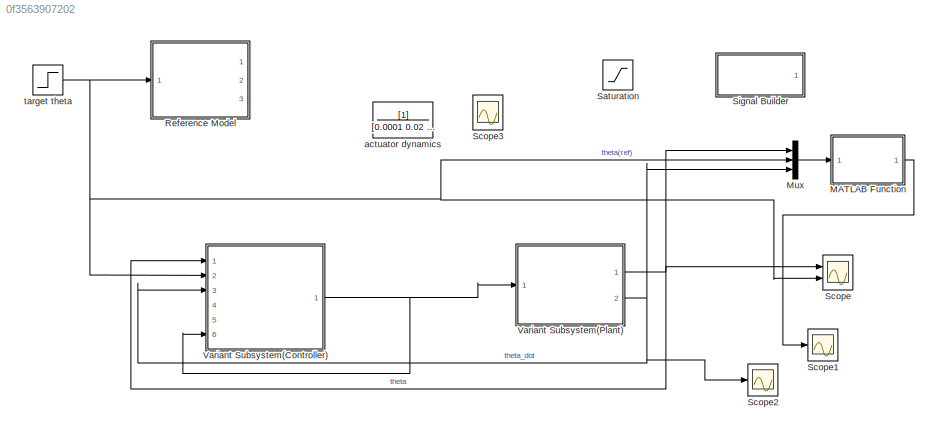
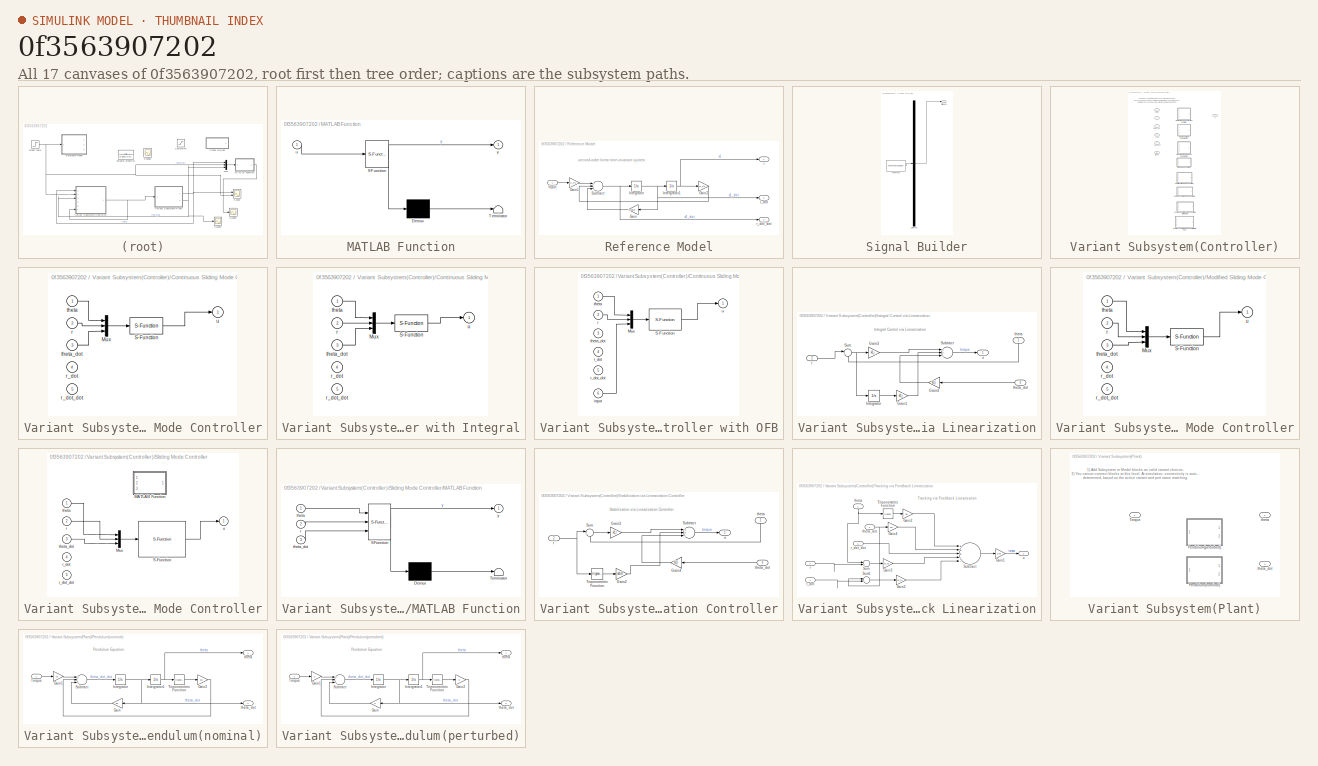
[diagram: thumbnail index - all 17 canvases of the model, root first then tree order]
MODEL slx_0f3563907202
KIND model
CONFIG AbsTol = auto
CONFIG EnableMultiTasking = off
CONFIG FixedStep = 0.01
CONFIG MaxStep = auto
CONFIG MinStep = auto
CONFIG PreLoadFcn = Nominal_Plant = Simulink.Variant('Mode_Plant == 1')\nPerturbed_Plant = Simulink.Variant('Mode_Plant == 2')\nMode_Plant = 1\nLinearization_Controller = Simulink.Variant('Mode_Controller == 1')\nIntegral_Controller = Simulink.Variant('Mode_Controller == 2')\nFeedback_Linearization_Controller = Simulink.Variant('Mode_Controller == 3')\nSliding_Mode_Controller = Simulink.Variant('Mode_Controller == 4')\nModi...<+338ch>
CONFIG RelTol = 1e-3
CONFIG SampleTimeConstraint = Unconstrained
CONFIG Solver = ode45
CONFIG SolverName = ode45
CONFIG StartTime = 0.0
CONFIG StopTime = 10.0
BLOCK [SubSystem] MATLAB Function
  ErrorFcn = Stateflow.Translate.translate
  PermitHierarchicalResolution = ExplicitOnly
  Ports = [1, 1]
  RequestExecContextInheritance = off
  SFBlockType = MATLAB Function
  TreatAsAtomicUnit = on
  Variant = off
BLOCK [Demux] MATLAB Function/ Demux 
  Outputs = 1
  Ports = [1, 1]
BLOCK [S-Function] MATLAB Function/ SFunction 
  EnableBusSupport = on
  FunctionName = sf_sfun
  PortCounts = [1 2]
  Ports = [1, 2]
  SFcnIsStateOwnerBlock = off
  SFunctionDeploymentMode = off
  Tag = Stateflow S-Function pendulum 2
BLOCK [Terminator] MATLAB Function/ Terminator 
BLOCK [Inport] MATLAB Function/u
  IconDisplay = Port number
BLOCK [Outport] MATLAB Function/y
  IconDisplay = Port number
BLOCK [Mux] Mux
  DisplayOption = bar
  Inputs = 3
  Ports = [3, 1]
BLOCK [SubSystem] Reference Model
  Ports = [1, 3]
  RequestExecContextInheritance = off
  Variant = off
  VariantControl = Nominal_Plant
BLOCK [Gain] Reference Model/Gain
  Gain = 2*zeta*w_n
  OutDataTypeStr = Inherit: Inherit via internal rule
  ParamDataTypeStr = Inherit: Inherit via internal rule
  SaturateOnIntegerOverflow = off
BLOCK [Gain] Reference Model/Gain1
  Gain = w_n^2
  OutDataTypeStr = Inherit: Inherit via internal rule
  ParamDataTypeStr = Inherit: Inherit via internal rule
  SaturateOnIntegerOverflow = off
BLOCK [Gain] Reference Model/Gain2
  Gain = w_n^2
  OutDataTypeStr = Inherit: Inherit via internal rule
  ParamDataTypeStr = Inherit: Inherit via internal rule
  SaturateOnIntegerOverflow = off
BLOCK [Inport] Reference Model/Input
  IconDisplay = Port number
BLOCK [Integrator] Reference Model/Integrator
  Ports = [1, 1]
BLOCK [Integrator] Reference Model/Intergrator1
  Ports = [1, 1]
BLOCK [Sum] Reference Model/Subtract
  InputSameDT = off
  Inputs = +--
  OutDataTypeStr = Inherit: Inherit via internal rule
  Ports = [3, 1]
  SaturateOnIntegerOverflow = off
BLOCK [Outport] Reference Model/r
  IconDisplay = Port number
BLOCK [Outport] Reference Model/r_dot
  IconDisplay = Port number
  Port = 2
BLOCK [Outport] Reference Model/r_dot_dot
  IconDisplay = Port number
  Port = 3
BLOCK [Saturate] Saturation
  InputPortMap = u0
  LowerLimit = -limit
  Ports = [1, 1]
  UpperLimit = limit
BLOCK [Scope] Scope
  NumInputPorts = 2
  Ports = [2]
  ScopeSpecificationString = Simulink.scopes.TimeScopeBlockCfg('CurrentConfiguration', extmgr.ConfigurationSet(extmgr.Configuration('Core','General UI',true),extmgr.Configuration('Core','Source UI',true),extmgr.Configuration('Sources','WiredSimulink',true),extmgr.Configuration('Visuals','Time Domain',true,'SerializedDisplays',{struct('MinYLimReal','-0.3927','MaxYLimReal','3.53429','YLabelReal','','MinYLimMag','0.00000','MaxYL...<+1431ch>
BLOCK [Scope] Scope1
  NumInputPorts = 1
  Ports = [1]
  ScopeSpecificationString = Simulink.scopes.TimeScopeBlockCfg('CurrentConfiguration', extmgr.ConfigurationSet(extmgr.Configuration('Core','General UI',true),extmgr.Configuration('Core','Source UI',true),extmgr.Configuration('Sources','WiredSimulink',true,'DataLoggingVariableName','ScopeData1'),extmgr.Configuration('Visuals','Time Domain',true,'SerializedDisplays',{struct('MinYLimReal','-1.76862','MaxYLimReal','0.20966','YLab...<+1446ch>
BLOCK [Scope] Scope2
  NumInputPorts = 1
  Ports = [1]
  ScopeSpecificationString = Simulink.scopes.TimeScopeBlockCfg('CurrentConfiguration', extmgr.ConfigurationSet(extmgr.Configuration('Core','General UI',true),extmgr.Configuration('Core','Source UI',true),extmgr.Configuration('Sources','WiredSimulink',true,'DataLoggingVariableName','ScopeData1'),extmgr.Configuration('Visuals','Time Domain',true,'SerializedDisplays',{struct('MinYLimReal','-5.00000','MaxYLimReal','5.00000','YLab...<+1440ch>
BLOCK [Scope] Scope3
  NumInputPorts = 2
  Ports = [2]
  ScopeSpecificationString = Simulink.scopes.TimeScopeBlockCfg('CurrentConfiguration', extmgr.ConfigurationSet(extmgr.Configuration('Core','General UI',true),extmgr.Configuration('Core','Source UI',true),extmgr.Configuration('Sources','WiredSimulink',true,'DataLoggingVariableName','ScopeData2'),extmgr.Configuration('Visuals','Time Domain',true,'SerializedDisplays',{struct('MinYLimReal','-0.19635','MaxYLimReal','1.76715','YLab...<+1449ch>
BLOCK [SubSystem] Signal Builder
  ClipboardFcn = sigbuilder_block('clipboard');
  CloseFcn = sigbuilder_block('close');
  ContinueFcn = sigbuilder_block('continue');
  CopyFcn = sigbuilder_block('copy');
  DeleteFcn = sigbuilder_block('delete');
  LoadFcn = sigbuilder_block('load');
  MaskHideContents = on
  ModelCloseFcn = sigbuilder_block('modelClose');
  NameChangeFcn = sigbuilder_block('namechange');
  OpenFcn = sigbuilder_block('open',[6 30 1012.5 446.25 ]);
  PauseFcn = sigbuilder_block('pause');
  Ports = [0, 1]
  PreSaveFcn = sigbuilder_block('preSave');
  RequestExecContextInheritance = off
  StartFcn = sigbuilder_block('start');
  StopFcn = sigbuilder_block('stop');
  Tag = STV Subsys
  Variant = off
BLOCK [Demux] Signal Builder/Demux
  Outputs = 1
  Ports = [1, 1]
  Tag = STV Demux
BLOCK [FromWorkspace] Signal Builder/FromWs
  SampleTime = 0
  Tag = STV FromWs
  VariableName = tuvar
  ZeroCross = on
BLOCK [Outport] Signal Builder/Signal 1
  IconDisplay = Port number
  Tag = STV Outport
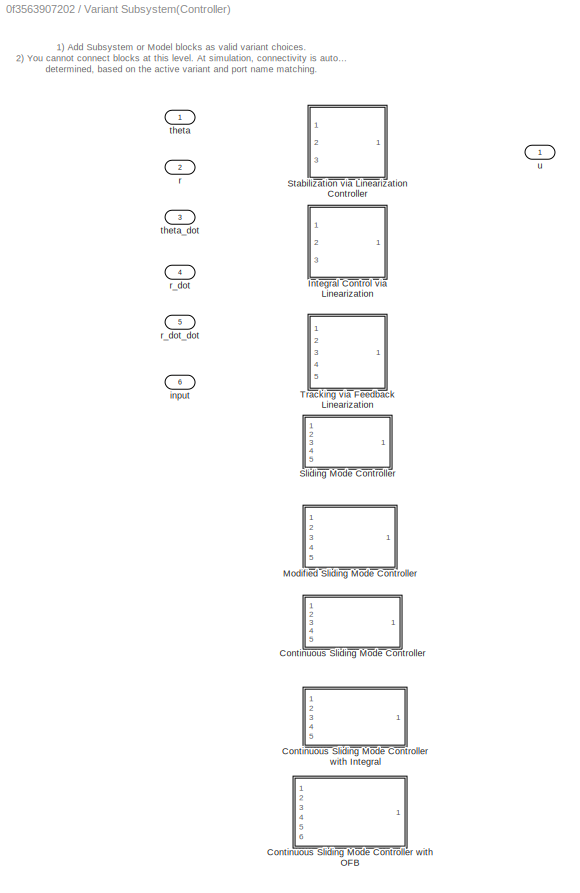
BLOCK [SubSystem] Variant Subsystem(Controller)
  Ports = [6, 1]
  RequestExecContextInheritance = off
  Variant = on
BLOCK [SubSystem] Variant Subsystem(Controller)/Continuous Sliding Mode Controller
  Ports = [5, 1]
  RequestExecContextInheritance = off
  Variant = off
  VariantControl = Continuous_Sliding_Mode_Controller
BLOCK [SubSystem] Variant Subsystem(Controller)/Continuous Sliding Mode Controller with Integral
  Ports = [5, 1]
  RequestExecContextInheritance = off
  Variant = off
  VariantControl = Integral_Continuous_Sliding_Mode_Controller
BLOCK [Mux] Variant Subsystem(Controller)/Continuous Sliding Mode Controller with Integral/Mux
  DisplayOption = bar
  Inputs = 3
  Ports = [3, 1]
BLOCK [S-Function] Variant Subsystem(Controller)/Continuous Sliding Mode Controller with Integral/S-Function
  EnableBusSupport = off
  FunctionName = SMC_continuous_integral
  Ports = [1, 1]
  SFcnIsStateOwnerBlock = off
  SFunctionDeploymentMode = off
BLOCK [Inport] Variant Subsystem(Controller)/Continuous Sliding Mode Controller with Integral/r
  IconDisplay = Port number
  Port = 2
BLOCK [Inport] Variant Subsystem(Controller)/Continuous Sliding Mode Controller with Integral/r_dot
  IconDisplay = Port number
  Port = 4
BLOCK [Inport] Variant Subsystem(Controller)/Continuous Sliding Mode Controller with Integral/r_dot_dot
  IconDisplay = Port number
  Port = 5
BLOCK [Inport] Variant Subsystem(Controller)/Continuous Sliding Mode Controller with Integral/theta
  IconDisplay = Port number
BLOCK [Inport] Variant Subsystem(Controller)/Continuous Sliding Mode Controller with Integral/theta_dot
  IconDisplay = Port number
  Port = 3
BLOCK [Outport] Variant Subsystem(Controller)/Continuous Sliding Mode Controller with Integral/u
  IconDisplay = Port number
BLOCK [SubSystem] Variant Subsystem(Controller)/Continuous Sliding Mode Controller with OFB
  Ports = [6, 1]
  RequestExecContextInheritance = off
  Variant = off
  VariantControl = Continuous_Sliding_Mode_Controller_OFB
BLOCK [Mux] Variant Subsystem(Controller)/Continuous Sliding Mode Controller with OFB/Mux
  DisplayOption = bar
  Inputs = 3
  Ports = [3, 1]
BLOCK [S-Function] Variant Subsystem(Controller)/Continuous Sliding Mode Controller with OFB/S-Function
  EnableBusSupport = off
  FunctionName = SMC_continuous_OFB
  Ports = [1, 1]
  SFcnIsStateOwnerBlock = off
  SFunctionDeploymentMode = off
BLOCK [Inport] Variant Subsystem(Controller)/Continuous Sliding Mode Controller with OFB/input
  IconDisplay = Port number
  Port = 6
BLOCK [Inport] Variant Subsystem(Controller)/Continuous Sliding Mode Controller with OFB/r
  IconDisplay = Port number
  Port = 2
BLOCK [Inport] Variant Subsystem(Controller)/Continuous Sliding Mode Controller with OFB/r_dot
  IconDisplay = Port number
  Port = 4
BLOCK [Inport] Variant Subsystem(Controller)/Continuous Sliding Mode Controller with OFB/r_dot_dot
  IconDisplay = Port number
  Port = 5
BLOCK [Inport] Variant Subsystem(Controller)/Continuous Sliding Mode Controller with OFB/theta
  IconDisplay = Port number
BLOCK [Inport] Variant Subsystem(Controller)/Continuous Sliding Mode Controller with OFB/theta_dot
  IconDisplay = Port number
  Port = 3
BLOCK [Outport] Variant Subsystem(Controller)/Continuous Sliding Mode Controller with OFB/u
  IconDisplay = Port number
BLOCK [Mux] Variant Subsystem(Controller)/Continuous Sliding Mode Controller/Mux
  DisplayOption = bar
  Inputs = 3
  Ports = [3, 1]
BLOCK [S-Function] Variant Subsystem(Controller)/Continuous Sliding Mode Controller/S-Function
  EnableBusSupport = off
  FunctionName = SMC_continuous
  Ports = [1, 1]
  SFcnIsStateOwnerBlock = off
  SFunctionDeploymentMode = off
BLOCK [Inport] Variant Subsystem(Controller)/Continuous Sliding Mode Controller/r
  IconDisplay = Port number
  Port = 2
BLOCK [Inport] Variant Subsystem(Controller)/Continuous Sliding Mode Controller/r_dot
  IconDisplay = Port number
  Port = 4
BLOCK [Inport] Variant Subsystem(Controller)/Continuous Sliding Mode Controller/r_dot_dot
  IconDisplay = Port number
  Port = 5
BLOCK [Inport] Variant Subsystem(Controller)/Continuous Sliding Mode Controller/theta
  IconDisplay = Port number
BLOCK [Inport] Variant Subsystem(Controller)/Continuous Sliding Mode Controller/theta_dot
  IconDisplay = Port number
  Port = 3
BLOCK [Outport] Variant Subsystem(Controller)/Continuous Sliding Mode Controller/u
  IconDisplay = Port number
BLOCK [SubSystem] Variant Subsystem(Controller)/Integral Control via Linearization
  Ports = [3, 1]
  RequestExecContextInheritance = off
  Variant = off
  VariantControl = Integral_Controller
BLOCK [Gain] Variant Subsystem(Controller)/Integral Control via Linearization/Gain1
  Gain = k3_i
  OutDataTypeStr = Inherit: Inherit via internal rule
  ParamDataTypeStr = Inherit: Inherit via internal rule
  SaturateOnIntegerOverflow = off
BLOCK [Gain] Variant Subsystem(Controller)/Integral Control via Linearization/Gain3
  Gain = k1_i
  OutDataTypeStr = Inherit: Inherit via internal rule
  ParamDataTypeStr = Inherit: Inherit via internal rule
  SaturateOnIntegerOverflow = off
BLOCK [Gain] Variant Subsystem(Controller)/Integral Control via Linearization/Gain4
  Gain = k2_i
  OutDataTypeStr = Inherit: Inherit via internal rule
  ParamDataTypeStr = Inherit: Inherit via internal rule
  SaturateOnIntegerOverflow = off
BLOCK [Integrator] Variant Subsystem(Controller)/Integral Control via Linearization/Integrator
  Ports = [1, 1]
BLOCK [Sum] Variant Subsystem(Controller)/Integral Control via Linearization/Subtract
  InputSameDT = off
  Inputs = ++-
  OutDataTypeStr = Inherit: Inherit via internal rule
  Ports = [3, 1]
  SaturateOnIntegerOverflow = off
BLOCK [Sum] Variant Subsystem(Controller)/Integral Control via Linearization/Sum
  IconShape = round
  InputSameDT = off
  Inputs = |+-
  OutDataTypeStr = Inherit: Inherit via internal rule
  Ports = [2, 1]
  SaturateOnIntegerOverflow = off
BLOCK [Inport] Variant Subsystem(Controller)/Integral Control via Linearization/r
  IconDisplay = Port number
  Port = 2
BLOCK [Inport] Variant Subsystem(Controller)/Integral Control via Linearization/theta
  IconDisplay = Port number
BLOCK [Inport] Variant Subsystem(Controller)/Integral Control via Linearization/theta_dot
  IconDisplay = Port number
  Port = 3
BLOCK [Outport] Variant Subsystem(Controller)/Integral Control via Linearization/u
  IconDisplay = Port number
BLOCK [SubSystem] Variant Subsystem(Controller)/Modified Sliding Mode Controller
  Ports = [5, 1]
  RequestExecContextInheritance = off
  Variant = off
  VariantControl = Modified_Sliding_Mode_Controller
BLOCK [Mux] Variant Subsystem(Controller)/Modified Sliding Mode Controller/Mux
  DisplayOption = bar
  Inputs = 3
  Ports = [3, 1]
BLOCK [S-Function] Variant Subsystem(Controller)/Modified Sliding Mode Controller/S-Function
  EnableBusSupport = off
  FunctionName = SMC_modified
  Ports = [1, 1]
  SFcnIsStateOwnerBlock = off
  SFunctionDeploymentMode = off
BLOCK [Inport] Variant Subsystem(Controller)/Modified Sliding Mode Controller/r
  IconDisplay = Port number
  Port = 2
BLOCK [Inport] Variant Subsystem(Controller)/Modified Sliding Mode Controller/r_dot
  IconDisplay = Port number
  Port = 4
BLOCK [Inport] Variant Subsystem(Controller)/Modified Sliding Mode Controller/r_dot_dot
  IconDisplay = Port number
  Port = 5
BLOCK [Inport] Variant Subsystem(Controller)/Modified Sliding Mode Controller/theta
  IconDisplay = Port number
BLOCK [Inport] Variant Subsystem(Controller)/Modified Sliding Mode Controller/theta_dot
  IconDisplay = Port number
  Port = 3
BLOCK [Outport] Variant Subsystem(Controller)/Modified Sliding Mode Controller/u
  IconDisplay = Port number
BLOCK [SubSystem] Variant Subsystem(Controller)/Sliding Mode Controller
  Ports = [5, 1]
  RequestExecContextInheritance = off
  Variant = off
  VariantControl = Sliding_Mode_Controller
BLOCK [SubSystem] Variant Subsystem(Controller)/Sliding Mode Controller/MATLAB Function
  Commented = on
  ErrorFcn = Stateflow.Translate.translate
  PermitHierarchicalResolution = ExplicitOnly
  Ports = [3, 1]
  RequestExecContextInheritance = off
  SFBlockType = MATLAB Function
  TreatAsAtomicUnit = on
  Variant = off
BLOCK [Demux] Variant Subsystem(Controller)/Sliding Mode Controller/MATLAB Function/ Demux 
  Outputs = 1
  Ports = [1, 1]
BLOCK [S-Function] Variant Subsystem(Controller)/Sliding Mode Controller/MATLAB Function/ SFunction 
  EnableBusSupport = on
  FunctionName = sf_sfun
  PortCounts = [3 2]
  Ports = [3, 2]
  SFcnIsStateOwnerBlock = off
  SFunctionDeploymentMode = off
  Tag = Stateflow S-Function pendulum 1
BLOCK [Terminator] Variant Subsystem(Controller)/Sliding Mode Controller/MATLAB Function/ Terminator 
BLOCK [Inport] Variant Subsystem(Controller)/Sliding Mode Controller/MATLAB Function/r
  IconDisplay = Port number
  Port = 2
BLOCK [Inport] Variant Subsystem(Controller)/Sliding Mode Controller/MATLAB Function/theta
  IconDisplay = Port number
BLOCK [Inport] Variant Subsystem(Controller)/Sliding Mode Controller/MATLAB Function/theta_dot
  IconDisplay = Port number
  Port = 3
BLOCK [Outport] Variant Subsystem(Controller)/Sliding Mode Controller/MATLAB Function/y
  IconDisplay = Port number
BLOCK [Mux] Variant Subsystem(Controller)/Sliding Mode Controller/Mux
  DisplayOption = bar
  Inputs = 3
  Ports = [3, 1]
BLOCK [S-Function] Variant Subsystem(Controller)/Sliding Mode Controller/S-Function
  EnableBusSupport = off
  FunctionName = SMC
  Ports = [1, 1]
  SFcnIsStateOwnerBlock = off
  SFunctionDeploymentMode = off
BLOCK [Inport] Variant Subsystem(Controller)/Sliding Mode Controller/r
  IconDisplay = Port number
  Port = 2
BLOCK [Inport] Variant Subsystem(Controller)/Sliding Mode Controller/r_dot
  IconDisplay = Port number
  Port = 4
BLOCK [Inport] Variant Subsystem(Controller)/Sliding Mode Controller/r_dot_dot
  IconDisplay = Port number
  Port = 5
BLOCK [Inport] Variant Subsystem(Controller)/Sliding Mode Controller/theta
  IconDisplay = Port number
BLOCK [Inport] Variant Subsystem(Controller)/Sliding Mode Controller/theta_dot
  IconDisplay = Port number
  Port = 3
BLOCK [Outport] Variant Subsystem(Controller)/Sliding Mode Controller/u
  IconDisplay = Port number
BLOCK [SubSystem] Variant Subsystem(Controller)/Stabilization via Linearization Controller
  Ports = [3, 1]
  RequestExecContextInheritance = off
  Variant = off
  VariantControl = Linearization_Controller
BLOCK [Gain] Variant Subsystem(Controller)/Stabilization via Linearization Controller/Gain2
  Gain = a0/c0
  OutDataTypeStr = Inherit: Inherit via internal rule
  ParamDataTypeStr = Inherit: Inherit via internal rule
  SaturateOnIntegerOverflow = off
BLOCK [Gain] Variant Subsystem(Controller)/Stabilization via Linearization Controller/Gain3
  Gain = k1_l
  OutDataTypeStr = Inherit: Inherit via internal rule
  ParamDataTypeStr = Inherit: Inherit via internal rule
  SaturateOnIntegerOverflow = off
BLOCK [Gain] Variant Subsystem(Controller)/Stabilization via Linearization Controller/Gain4
  Gain = k2_l
  OutDataTypeStr = Inherit: Inherit via internal rule
  ParamDataTypeStr = Inherit: Inherit via internal rule
  SaturateOnIntegerOverflow = off
BLOCK [Sum] Variant Subsystem(Controller)/Stabilization via Linearization Controller/Subtract
  InputSameDT = off
  Inputs = ++-
  OutDataTypeStr = Inherit: Inherit via internal rule
  Ports = [3, 1]
  SaturateOnIntegerOverflow = off
BLOCK [Sum] Variant Subsystem(Controller)/Stabilization via Linearization Controller/Sum
  IconShape = round
  InputSameDT = off
  Inputs = |+-
  OutDataTypeStr = Inherit: Inherit via internal rule
  Ports = [2, 1]
  SaturateOnIntegerOverflow = off
BLOCK [Trigonometry] Variant Subsystem(Controller)/Stabilization via Linearization Controller/Trigonometric Function
  Ports = [1, 1]
BLOCK [Inport] Variant Subsystem(Controller)/Stabilization via Linearization Controller/r
  IconDisplay = Port number
  Port = 2
BLOCK [Inport] Variant Subsystem(Controller)/Stabilization via Linearization Controller/theta
  IconDisplay = Port number
BLOCK [Inport] Variant Subsystem(Controller)/Stabilization via Linearization Controller/theta_dot
  IconDisplay = Port number
  Port = 3
BLOCK [Outport] Variant Subsystem(Controller)/Stabilization via Linearization Controller/u
  IconDisplay = Port number
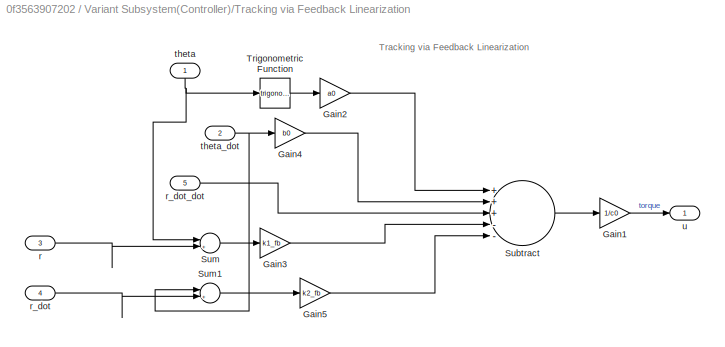
BLOCK [SubSystem] Variant Subsystem(Controller)/Tracking via Feedback Linearization
  Ports = [5, 1]
  RequestExecContextInheritance = off
  Variant = off
  VariantControl = Feedback_Linearization_Controller
BLOCK [Gain] Variant Subsystem(Controller)/Tracking via Feedback Linearization/Gain1
  Gain = 1/c0
  OutDataTypeStr = Inherit: Inherit via internal rule
  ParamDataTypeStr = Inherit: Inherit via internal rule
  SaturateOnIntegerOverflow = off
BLOCK [Gain] Variant Subsystem(Controller)/Tracking via Feedback Linearization/Gain2
  Gain = a0
  OutDataTypeStr = Inherit: Inherit via internal rule
  ParamDataTypeStr = Inherit: Inherit via internal rule
  SaturateOnIntegerOverflow = off
BLOCK [Gain] Variant Subsystem(Controller)/Tracking via Feedback Linearization/Gain3
  Gain = k1_fb
  OutDataTypeStr = Inherit: Inherit via internal rule
  ParamDataTypeStr = Inherit: Inherit via internal rule
  SaturateOnIntegerOverflow = off
BLOCK [Gain] Variant Subsystem(Controller)/Tracking via Feedback Linearization/Gain4
  Gain = b0
  OutDataTypeStr = Inherit: Inherit via internal rule
  ParamDataTypeStr = Inherit: Inherit via internal rule
  SaturateOnIntegerOverflow = off
BLOCK [Gain] Variant Subsystem(Controller)/Tracking via Feedback Linearization/Gain5
  Gain = k2_fb
  OutDataTypeStr = Inherit: Inherit via internal rule
  ParamDataTypeStr = Inherit: Inherit via internal rule
  SaturateOnIntegerOverflow = off
BLOCK [Sum] Variant Subsystem(Controller)/Tracking via Feedback Linearization/Subtract
  InputSameDT = off
  Inputs = +++--
  OutDataTypeStr = Inherit: Inherit via internal rule
  Ports = [5, 1]
  SaturateOnIntegerOverflow = off
BLOCK [Sum] Variant Subsystem(Controller)/Tracking via Feedback Linearization/Sum
  IconShape = round
  InputSameDT = off
  Inputs = |+-
  OutDataTypeStr = Inherit: Inherit via internal rule
  Ports = [2, 1]
  SaturateOnIntegerOverflow = off
BLOCK [Sum] Variant Subsystem(Controller)/Tracking via Feedback Linearization/Sum1
  IconShape = round
  InputSameDT = off
  Inputs = |+-
  OutDataTypeStr = Inherit: Inherit via internal rule
  Ports = [2, 1]
  SaturateOnIntegerOverflow = off
BLOCK [Trigonometry] Variant Subsystem(Controller)/Tracking via Feedback Linearization/Trigonometric Function
  Ports = [1, 1]
BLOCK [Inport] Variant Subsystem(Controller)/Tracking via Feedback Linearization/r
  IconDisplay = Port number
  Port = 3
BLOCK [Inport] Variant Subsystem(Controller)/Tracking via Feedback Linearization/r_dot
  IconDisplay = Port number
  Port = 4
BLOCK [Inport] Variant Subsystem(Controller)/Tracking via Feedback Linearization/r_dot_dot
  IconDisplay = Port number
  Port = 5
BLOCK [Inport] Variant Subsystem(Controller)/Tracking via Feedback Linearization/theta
  IconDisplay = Port number
BLOCK [Inport] Variant Subsystem(Controller)/Tracking via Feedback Linearization/theta_dot
  IconDisplay = Port number
  Port = 2
BLOCK [Outport] Variant Subsystem(Controller)/Tracking via Feedback Linearization/u
  IconDisplay = Port number
BLOCK [Inport] Variant Subsystem(Controller)/input
  IconDisplay = Port number
  Port = 6
BLOCK [Inport] Variant Subsystem(Controller)/r
  IconDisplay = Port number
  Port = 2
BLOCK [Inport] Variant Subsystem(Controller)/r_dot
  IconDisplay = Port number
  Port = 4
BLOCK [Inport] Variant Subsystem(Controller)/r_dot_dot
  IconDisplay = Port number
  Port = 5
BLOCK [Inport] Variant Subsystem(Controller)/theta
  IconDisplay = Port number
BLOCK [Inport] Variant Subsystem(Controller)/theta_dot
  IconDisplay = Port number
  Port = 3
BLOCK [Outport] Variant Subsystem(Controller)/u
  IconDisplay = Port number
BLOCK [SubSystem] Variant Subsystem(Plant)
  Ports = [1, 2]
  RequestExecContextInheritance = off
  Variant = on
BLOCK [SubSystem] Variant Subsystem(Plant)/Pendulum(nominal)
  Ports = [1, 2]
  RequestExecContextInheritance = off
  Variant = off
  VariantControl = Nominal_Plant
BLOCK [Gain] Variant Subsystem(Plant)/Pendulum(nominal)/Gain
  Gain = b0
  OutDataTypeStr = Inherit: Inherit via internal rule
  ParamDataTypeStr = Inherit: Inherit via internal rule
  SaturateOnIntegerOverflow = off
BLOCK [Gain] Variant Subsystem(Plant)/Pendulum(nominal)/Gain1
  Gain = c0
  OutDataTypeStr = Inherit: Inherit via internal rule
  ParamDataTypeStr = Inherit: Inherit via internal rule
  SaturateOnIntegerOverflow = off
BLOCK [Gain] Variant Subsystem(Plant)/Pendulum(nominal)/Gain2
  Gain = a0
  OutDataTypeStr = Inherit: Inherit via internal rule
  ParamDataTypeStr = Inherit: Inherit via internal rule
  SaturateOnIntegerOverflow = off
BLOCK [Integrator] Variant Subsystem(Plant)/Pendulum(nominal)/Integrator
  InitialCondition = delta_dot_init
  Ports = [1, 1]
BLOCK [Integrator] Variant Subsystem(Plant)/Pendulum(nominal)/Intergrator1
  InitialCondition = delta_init
  Ports = [1, 1]
BLOCK [Sum] Variant Subsystem(Plant)/Pendulum(nominal)/Subtract
  InputSameDT = off
  Inputs = +--
  OutDataTypeStr = Inherit: Inherit via internal rule
  Ports = [3, 1]
  SaturateOnIntegerOverflow = off
BLOCK [Inport] Variant Subsystem(Plant)/Pendulum(nominal)/Torque
  IconDisplay = Port number
BLOCK [Trigonometry] Variant Subsystem(Plant)/Pendulum(nominal)/Trigonometric Function
  Ports = [1, 1]
BLOCK [Outport] Variant Subsystem(Plant)/Pendulum(nominal)/theta
  IconDisplay = Port number
BLOCK [Outport] Variant Subsystem(Plant)/Pendulum(nominal)/theta_dot
  IconDisplay = Port number
  Port = 2
BLOCK [SubSystem] Variant Subsystem(Plant)/Pendulum(perturbed)
  Ports = [1, 2]
  RequestExecContextInheritance = off
  Variant = off
  VariantControl = Perturbed_Plant
BLOCK [Gain] Variant Subsystem(Plant)/Pendulum(perturbed)/Gain
  Gain = b
  OutDataTypeStr = Inherit: Inherit via internal rule
  ParamDataTypeStr = Inherit: Inherit via internal rule
  SaturateOnIntegerOverflow = off
BLOCK [Gain] Variant Subsystem(Plant)/Pendulum(perturbed)/Gain1
  Gain = c
  OutDataTypeStr = Inherit: Inherit via internal rule
  ParamDataTypeStr = Inherit: Inherit via internal rule
  SaturateOnIntegerOverflow = off
BLOCK [Gain] Variant Subsystem(Plant)/Pendulum(perturbed)/Gain2
  Gain = a
  OutDataTypeStr = Inherit: Inherit via internal rule
  ParamDataTypeStr = Inherit: Inherit via internal rule
  SaturateOnIntegerOverflow = off
BLOCK [Integrator] Variant Subsystem(Plant)/Pendulum(perturbed)/Integrator
  InitialCondition = delta_dot_init
  Ports = [1, 1]
BLOCK [Integrator] Variant Subsystem(Plant)/Pendulum(perturbed)/Intergrator1
  InitialCondition = delta_init
  Ports = [1, 1]
BLOCK [Sum] Variant Subsystem(Plant)/Pendulum(perturbed)/Subtract
  InputSameDT = off
  Inputs = +--
  OutDataTypeStr = Inherit: Inherit via internal rule
  Ports = [3, 1]
  SaturateOnIntegerOverflow = off
BLOCK [Inport] Variant Subsystem(Plant)/Pendulum(perturbed)/Torque
  IconDisplay = Port number
BLOCK [Trigonometry] Variant Subsystem(Plant)/Pendulum(perturbed)/Trigonometric Function
  Ports = [1, 1]
BLOCK [Outport] Variant Subsystem(Plant)/Pendulum(perturbed)/theta
  IconDisplay = Port number
BLOCK [Outport] Variant Subsystem(Plant)/Pendulum(perturbed)/theta_dot
  IconDisplay = Port number
  Port = 2
BLOCK [Inport] Variant Subsystem(Plant)/Torque
  IconDisplay = Port number
BLOCK [Outport] Variant Subsystem(Plant)/theta
  IconDisplay = Port number
BLOCK [Outport] Variant Subsystem(Plant)/theta_dot
  IconDisplay = Port number
  Port = 2
BLOCK [TransferFcn] actuator dynamics
  Denominator = [0.0001 0.02 1]
BLOCK [Step] target theta
  After = delta
  SampleTime = 0
  Time = 0
ANNOTATION Reference Model: second-order linear time-invariant system
ANNOTATION Variant Subsystem(Controller): 1) Add Subsystem or Model blocks as valid variant choices. 2) You cannot connect blocks at this level. At simulation, connectivity is automatically determined, based on the active variant and port name matching.
ANNOTATION Variant Subsystem(Controller)/Integral Control via Linearization: Integral Control via Linearization
ANNOTATION Variant Subsystem(Controller)/Stabilization via Linearization Controller: Stabilization via Linearization Controller
ANNOTATION Variant Subsystem(Controller)/Tracking via Feedback Linearization: Tracking via Feedback Linearization
ANNOTATION Variant Subsystem(Plant): 1) Add Subsystem or Model blocks as valid variant choices. 2) You cannot connect blocks at this level. At simulation, connectivity is automatically determined, based on the active variant and port name matching.
ANNOTATION Variant Subsystem(Plant)/Pendulum(nominal): Pendulum Equation
ANNOTATION Variant Subsystem(Plant)/Pendulum(perturbed): Pendulum Equation
LINE MATLAB Function:1 -> Scope1:1
LINE Mux:1 -> MATLAB Function:1
LINE Reference Model/Gain1:1 -> Reference Model/Subtract:1
LINE Reference Model/Gain2:1 -> Reference Model/Subtract:2
LINE Reference Model/Gain:1 -> Reference Model/Subtract:3
LINE Reference Model/Input:1 -> Reference Model/Gain1:1
NET Reference Model/Integrator:1 -> Reference Model/Gain:1, Reference Model/Intergrator1:1, Reference Model/r_dot:1
NET Reference Model/Intergrator1:1 -> Reference Model/Gain2:1, Reference Model/r:1
NET Reference Model/Subtract:1 -> Reference Model/Integrator:1, Reference Model/r_dot_dot:1
LINE Variant Subsystem(Controller)/Continuous Sliding Mode Controller with Integral/Mux:1 -> Variant Subsystem(Controller)/Continuous Sliding Mode Controller with Integral/S-Function:1
LINE Variant Subsystem(Controller)/Continuous Sliding Mode Controller with Integral/S-Function:1 -> Variant Subsystem(Controller)/Continuous Sliding Mode Controller with Integral/u:1
LINE Variant Subsystem(Controller)/Continuous Sliding Mode Controller with Integral/r:1 -> Variant Subsystem(Controller)/Continuous Sliding Mode Controller with Integral/Mux:2
LINE Variant Subsystem(Controller)/Continuous Sliding Mode Controller with Integral/theta:1 -> Variant Subsystem(Controller)/Continuous Sliding Mode Controller with Integral/Mux:1
LINE Variant Subsystem(Controller)/Continuous Sliding Mode Controller with Integral/theta_dot:1 -> Variant Subsystem(Controller)/Continuous Sliding Mode Controller with Integral/Mux:3
LINE Variant Subsystem(Controller)/Continuous Sliding Mode Controller with OFB/Mux:1 -> Variant Subsystem(Controller)/Continuous Sliding Mode Controller with OFB/S-Function:1
LINE Variant Subsystem(Controller)/Continuous Sliding Mode Controller with OFB/S-Function:1 -> Variant Subsystem(Controller)/Continuous Sliding Mode Controller with OFB/u:1
LINE Variant Subsystem(Controller)/Continuous Sliding Mode Controller with OFB/input:1 -> Variant Subsystem(Controller)/Continuous Sliding Mode Controller with OFB/Mux:3
LINE Variant Subsystem(Controller)/Continuous Sliding Mode Controller with OFB/r:1 -> Variant Subsystem(Controller)/Continuous Sliding Mode Controller with OFB/Mux:2
LINE Variant Subsystem(Controller)/Continuous Sliding Mode Controller with OFB/theta:1 -> Variant Subsystem(Controller)/Continuous Sliding Mode Controller with OFB/Mux:1
LINE Variant Subsystem(Controller)/Continuous Sliding Mode Controller/Mux:1 -> Variant Subsystem(Controller)/Continuous Sliding Mode Controller/S-Function:1
LINE Variant Subsystem(Controller)/Continuous Sliding Mode Controller/S-Function:1 -> Variant Subsystem(Controller)/Continuous Sliding Mode Controller/u:1
LINE Variant Subsystem(Controller)/Continuous Sliding Mode Controller/r:1 -> Variant Subsystem(Controller)/Continuous Sliding Mode Controller/Mux:2
LINE Variant Subsystem(Controller)/Continuous Sliding Mode Controller/theta:1 -> Variant Subsystem(Controller)/Continuous Sliding Mode Controller/Mux:1
LINE Variant Subsystem(Controller)/Continuous Sliding Mode Controller/theta_dot:1 -> Variant Subsystem(Controller)/Continuous Sliding Mode Controller/Mux:3
LINE Variant Subsystem(Controller)/Integral Control via Linearization/Gain1:1 -> Variant Subsystem(Controller)/Integral Control via Linearization/Subtract:2
LINE Variant Subsystem(Controller)/Integral Control via Linearization/Gain3:1 -> Variant Subsystem(Controller)/Integral Control via Linearization/Subtract:1
LINE Variant Subsystem(Controller)/Integral Control via Linearization/Gain4:1 -> Variant Subsystem(Controller)/Integral Control via Linearization/Subtract:3
LINE Variant Subsystem(Controller)/Integral Control via Linearization/Integrator:1 -> Variant Subsystem(Controller)/Integral Control via Linearization/Gain1:1
LINE Variant Subsystem(Controller)/Integral Control via Linearization/Subtract:1 -> Variant Subsystem(Controller)/Integral Control via Linearization/u:1
NET Variant Subsystem(Controller)/Integral Control via Linearization/Sum:1 -> Variant Subsystem(Controller)/Integral Control via Linearization/Gain3:1, Variant Subsystem(Controller)/Integral Control via Linearization/Integrator:1
LINE Variant Subsystem(Controller)/Integral Control via Linearization/r:1 -> Variant Subsystem(Controller)/Integral Control via Linearization/Sum:1
LINE Variant Subsystem(Controller)/Integral Control via Linearization/theta:1 -> Variant Subsystem(Controller)/Integral Control via Linearization/Sum:2
LINE Variant Subsystem(Controller)/Integral Control via Linearization/theta_dot:1 -> Variant Subsystem(Controller)/Integral Control via Linearization/Gain4:1
LINE Variant Subsystem(Controller)/Modified Sliding Mode Controller/Mux:1 -> Variant Subsystem(Controller)/Modified Sliding Mode Controller/S-Function:1
LINE Variant Subsystem(Controller)/Modified Sliding Mode Controller/S-Function:1 -> Variant Subsystem(Controller)/Modified Sliding Mode Controller/u:1
LINE Variant Subsystem(Controller)/Modified Sliding Mode Controller/r:1 -> Variant Subsystem(Controller)/Modified Sliding Mode Controller/Mux:2
LINE Variant Subsystem(Controller)/Modified Sliding Mode Controller/theta:1 -> Variant Subsystem(Controller)/Modified Sliding Mode Controller/Mux:1
LINE Variant Subsystem(Controller)/Modified Sliding Mode Controller/theta_dot:1 -> Variant Subsystem(Controller)/Modified Sliding Mode Controller/Mux:3
LINE Variant Subsystem(Controller)/Sliding Mode Controller/Mux:1 -> Variant Subsystem(Controller)/Sliding Mode Controller/S-Function:1
LINE Variant Subsystem(Controller)/Sliding Mode Controller/S-Function:1 -> Variant Subsystem(Controller)/Sliding Mode Controller/u:1
LINE Variant Subsystem(Controller)/Sliding Mode Controller/r:1 -> Variant Subsystem(Controller)/Sliding Mode Controller/Mux:2
LINE Variant Subsystem(Controller)/Sliding Mode Controller/theta:1 -> Variant Subsystem(Controller)/Sliding Mode Controller/Mux:1
LINE Variant Subsystem(Controller)/Sliding Mode Controller/theta_dot:1 -> Variant Subsystem(Controller)/Sliding Mode Controller/Mux:3
LINE Variant Subsystem(Controller)/Stabilization via Linearization Controller/Gain2:1 -> Variant Subsystem(Controller)/Stabilization via Linearization Controller/Subtract:2
LINE Variant Subsystem(Controller)/Stabilization via Linearization Controller/Gain3:1 -> Variant Subsystem(Controller)/Stabilization via Linearization Controller/Subtract:1
LINE Variant Subsystem(Controller)/Stabilization via Linearization Controller/Gain4:1 -> Variant Subsystem(Controller)/Stabilization via Linearization Controller/Subtract:3
LINE Variant Subsystem(Controller)/Stabilization via Linearization Controller/Subtract:1 -> Variant Subsystem(Controller)/Stabilization via Linearization Controller/u:1
LINE Variant Subsystem(Controller)/Stabilization via Linearization Controller/Sum:1 -> Variant Subsystem(Controller)/Stabilization via Linearization Controller/Gain3:1
LINE Variant Subsystem(Controller)/Stabilization via Linearization Controller/Trigonometric Function:1 -> Variant Subsystem(Controller)/Stabilization via Linearization Controller/Gain2:1
NET Variant Subsystem(Controller)/Stabilization via Linearization Controller/r:1 -> Variant Subsystem(Controller)/Stabilization via Linearization Controller/Sum:1, Variant Subsystem(Controller)/Stabilization via Linearization Controller/Trigonometric Function:1
LINE Variant Subsystem(Controller)/Stabilization via Linearization Controller/theta:1 -> Variant Subsystem(Controller)/Stabilization via Linearization Controller/Sum:2
LINE Variant Subsystem(Controller)/Stabilization via Linearization Controller/theta_dot:1 -> Variant Subsystem(Controller)/Stabilization via Linearization Controller/Gain4:1
LINE Variant Subsystem(Controller)/Tracking via Feedback Linearization/Gain1:1 -> Variant Subsystem(Controller)/Tracking via Feedback Linearization/u:1
LINE Variant Subsystem(Controller)/Tracking via Feedback Linearization/Gain2:1 -> Variant Subsystem(Controller)/Tracking via Feedback Linearization/Subtract:1
LINE Variant Subsystem(Controller)/Tracking via Feedback Linearization/Gain3:1 -> Variant Subsystem(Controller)/Tracking via Feedback Linearization/Subtract:4
LINE Variant Subsystem(Controller)/Tracking via Feedback Linearization/Gain4:1 -> Variant Subsystem(Controller)/Tracking via Feedback Linearization/Subtract:2
LINE Variant Subsystem(Controller)/Tracking via Feedback Linearization/Gain5:1 -> Variant Subsystem(Controller)/Tracking via Feedback Linearization/Subtract:5
LINE Variant Subsystem(Controller)/Tracking via Feedback Linearization/Subtract:1 -> Variant Subsystem(Controller)/Tracking via Feedback Linearization/Gain1:1
LINE Variant Subsystem(Controller)/Tracking via Feedback Linearization/Sum1:1 -> Variant Subsystem(Controller)/Tracking via Feedback Linearization/Gain5:1
LINE Variant Subsystem(Controller)/Tracking via Feedback Linearization/Sum:1 -> Variant Subsystem(Controller)/Tracking via Feedback Linearization/Gain3:1
LINE Variant Subsystem(Controller)/Tracking via Feedback Linearization/Trigonometric Function:1 -> Variant Subsystem(Controller)/Tracking via Feedback Linearization/Gain2:1
LINE Variant Subsystem(Controller)/Tracking via Feedback Linearization/r:1 -> Variant Subsystem(Controller)/Tracking via Feedback Linearization/Sum:2
LINE Variant Subsystem(Controller)/Tracking via Feedback Linearization/r_dot:1 -> Variant Subsystem(Controller)/Tracking via Feedback Linearization/Sum1:2
LINE Variant Subsystem(Controller)/Tracking via Feedback Linearization/r_dot_dot:1 -> Variant Subsystem(Controller)/Tracking via Feedback Linearization/Subtract:3
NET Variant Subsystem(Controller)/Tracking via Feedback Linearization/theta:1 -> Variant Subsystem(Controller)/Tracking via Feedback Linearization/Sum:1, Variant Subsystem(Controller)/Tracking via Feedback Linearization/Trigonometric Function:1
NET Variant Subsystem(Controller)/Tracking via Feedback Linearization/theta_dot:1 -> Variant Subsystem(Controller)/Tracking via Feedback Linearization/Gain4:1, Variant Subsystem(Controller)/Tracking via Feedback Linearization/Sum1:1
NET Variant Subsystem(Controller):1 -> Variant Subsystem(Controller):6, Variant Subsystem(Plant):1
LINE Variant Subsystem(Plant)/Pendulum(nominal)/Gain1:1 -> Variant Subsystem(Plant)/Pendulum(nominal)/Subtract:1
LINE Variant Subsystem(Plant)/Pendulum(nominal)/Gain2:1 -> Variant Subsystem(Plant)/Pendulum(nominal)/Subtract:2
LINE Variant Subsystem(Plant)/Pendulum(nominal)/Gain:1 -> Variant Subsystem(Plant)/Pendulum(nominal)/Subtract:3
NET Variant Subsystem(Plant)/Pendulum(nominal)/Integrator:1 -> Variant Subsystem(Plant)/Pendulum(nominal)/Gain:1, Variant Subsystem(Plant)/Pendulum(nominal)/Intergrator1:1, Variant Subsystem(Plant)/Pendulum(nominal)/theta_dot:1
NET Variant Subsystem(Plant)/Pendulum(nominal)/Intergrator1:1 -> Variant Subsystem(Plant)/Pendulum(nominal)/Trigonometric Function:1, Variant Subsystem(Plant)/Pendulum(nominal)/theta:1
LINE Variant Subsystem(Plant)/Pendulum(nominal)/Subtract:1 -> Variant Subsystem(Plant)/Pendulum(nominal)/Integrator:1
LINE Variant Subsystem(Plant)/Pendulum(nominal)/Torque:1 -> Variant Subsystem(Plant)/Pendulum(nominal)/Gain1:1
LINE Variant Subsystem(Plant)/Pendulum(nominal)/Trigonometric Function:1 -> Variant Subsystem(Plant)/Pendulum(nominal)/Gain2:1
LINE Variant Subsystem(Plant)/Pendulum(perturbed)/Gain1:1 -> Variant Subsystem(Plant)/Pendulum(perturbed)/Subtract:1
LINE Variant Subsystem(Plant)/Pendulum(perturbed)/Gain2:1 -> Variant Subsystem(Plant)/Pendulum(perturbed)/Subtract:2
LINE Variant Subsystem(Plant)/Pendulum(perturbed)/Gain:1 -> Variant Subsystem(Plant)/Pendulum(perturbed)/Subtract:3
NET Variant Subsystem(Plant)/Pendulum(perturbed)/Integrator:1 -> Variant Subsystem(Plant)/Pendulum(perturbed)/Gain:1, Variant Subsystem(Plant)/Pendulum(perturbed)/Intergrator1:1, Variant Subsystem(Plant)/Pendulum(perturbed)/theta_dot:1
NET Variant Subsystem(Plant)/Pendulum(perturbed)/Intergrator1:1 -> Variant Subsystem(Plant)/Pendulum(perturbed)/Trigonometric Function:1, Variant Subsystem(Plant)/Pendulum(perturbed)/theta:1
LINE Variant Subsystem(Plant)/Pendulum(perturbed)/Subtract:1 -> Variant Subsystem(Plant)/Pendulum(perturbed)/Integrator:1
LINE Variant Subsystem(Plant)/Pendulum(perturbed)/Torque:1 -> Variant Subsystem(Plant)/Pendulum(perturbed)/Gain1:1
LINE Variant Subsystem(Plant)/Pendulum(perturbed)/Trigonometric Function:1 -> Variant Subsystem(Plant)/Pendulum(perturbed)/Gain2:1
NET Variant Subsystem(Plant):1 -> Mux:1, Scope:1, Variant Subsystem(Controller):1
NET Variant Subsystem(Plant):2 -> Mux:3, Scope2:1, Variant Subsystem(Controller):3
NET target theta:1 -> Mux:2, Reference Model:1, Scope:2, Variant Subsystem(Controller):2
note: NET lines group one-source signal fan-out (src -> all destinations, sorted); 1:1 wires keep LINE
CHART Variant Subsystem(Controller)/Sliding Mode Controller/MATLAB Function states=1 transitions=1
  STATE_LABEL 'eML_blk_kernel()'
  STATE_LABEL 'SCRIPT:\nfunction y = sliding_mode_control(theta,r,theta_dot)\n\n% theta = u(1);\n% r = u(2);\n% theta_dot = u(3);\n\nx1 = theta - r;\nx2 = theta_dot;\n\nk = 4;\na1 = 1;\n\ns = a1*x1+x2;\nuc = -k*sign(s);\n\ny = uc;\n'
CHART MATLAB Function states=1 transitions=1
  STATE_LABEL 'eML_blk_kernel()'
  STATE_LABEL 'SCRIPT:\nfunction y = sliding_manifold(u)\n\ntheta = u(1);\nr = u(2);\ntheta_dot = u(3);\n\nx1 = theta - r;\nx2 = theta_dot;\n\na1 = 1;\n\ns = a1*x1+x2;\n\ny = s;\n'
